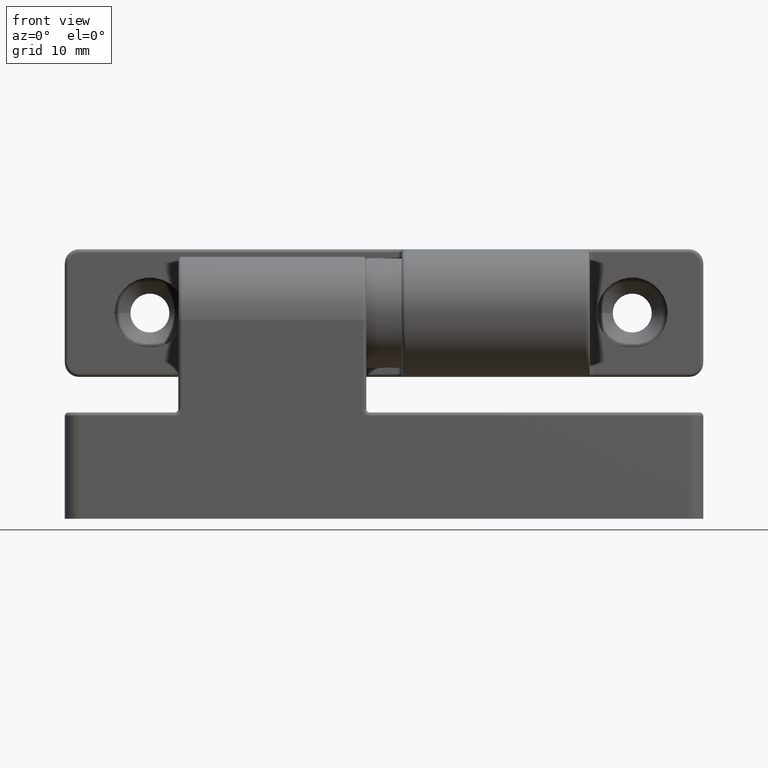
[diagram: clean part render]
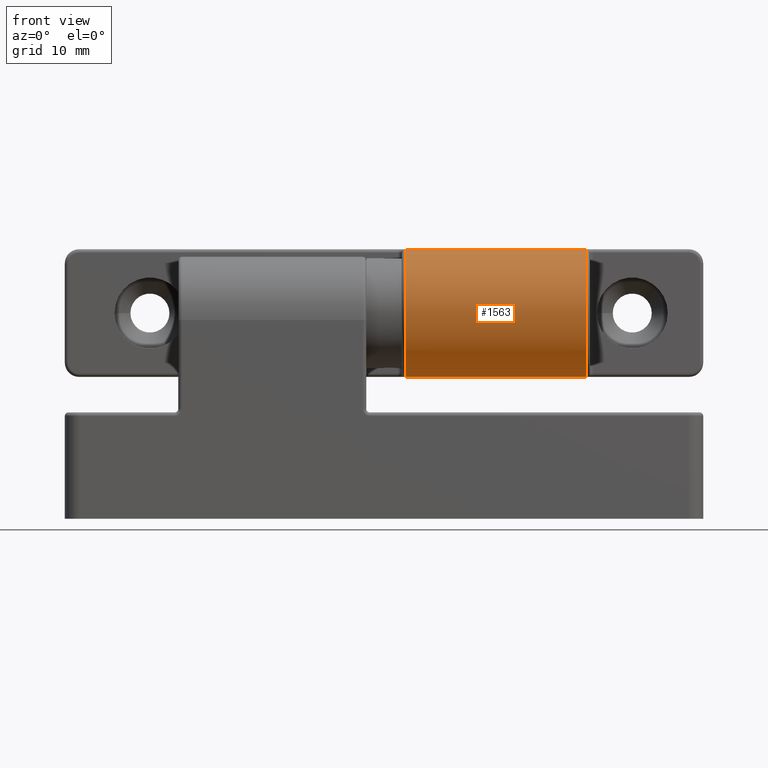
[diagram: same view with one face highlighted and labeled with its STEP entity id]
A machine part, front view. The second image highlights one B-rep face of the part: STEP entity #1563.
In plain terms, the highlighted cylindrical surface (partial cylindrical patch) has radius 9 mm, axis along (-1, 0, -0).
Its self-contained STEP definition (entity closure, byte-faithful):
#173=LINE('',#2704,#249);
#190=LINE('',#2778,#266);
#249=VECTOR('',#2211,25.5);
#266=VECTOR('',#2298,25.5);
#311=CYLINDRICAL_SURFACE('',#1787,9.);
#408=FACE_OUTER_BOUND('',#540,.T.);
#540=EDGE_LOOP('',(#1389,#1390,#1391,#1392));
#666=CIRCLE('',#1743,9.);
#690=CIRCLE('',#1783,9.);
#797=VERTEX_POINT('',#2675);
#799=VERTEX_POINT('',#2681);
#804=VERTEX_POINT('',#2703);
#824=VERTEX_POINT('',#2763);
#978=EDGE_CURVE('',#799,#797,#666,.T.);
#989=EDGE_CURVE('',#797,#804,#173,.T.);
#1020=EDGE_CURVE('',#804,#824,#690,.T.);
#1027=EDGE_CURVE('',#799,#824,#190,.T.);
#1389=ORIENTED_EDGE('',*,*,#978,.F.);
#1390=ORIENTED_EDGE('',*,*,#1027,.T.);
#1391=ORIENTED_EDGE('',*,*,#1020,.F.);
#1392=ORIENTED_EDGE('',*,*,#989,.F.);
#1563=ADVANCED_FACE('',(#408),#311,.T.);
#1743=AXIS2_PLACEMENT_3D('',#2683,#2186,#2187);
#1783=AXIS2_PLACEMENT_3D('',#2767,#2284,#2285);
#1787=AXIS2_PLACEMENT_3D('',#2779,#2299,#2300);
#2186=DIRECTION('center_axis',(-1.,0.,0.));
#2187=DIRECTION('ref_axis',(0.,-8.93433932504306E-19,1.));
#2211=DIRECTION('',(1.,0.,0.));
#2284=DIRECTION('center_axis',(1.,0.,0.));
#2285=DIRECTION('ref_axis',(0.,-8.93433932504306E-19,1.));
#2298=DIRECTION('',(1.,0.,0.));
#2299=DIRECTION('center_axis',(1.,0.,0.));
#2300=DIRECTION('ref_axis',(0.,1.2335811384724E-16,-1.));
#2675=CARTESIAN_POINT('',(-28.5,9.,23.));
#2681=CARTESIAN_POINT('',(-28.5,-9.,23.));
#2683=CARTESIAN_POINT('Origin',(-28.5,0.,23.));
#2703=CARTESIAN_POINT('',(-3.,9.,23.));
#2704=CARTESIAN_POINT('',(-29.,9.,23.));
#2763=CARTESIAN_POINT('',(-2.99999999999999,-9.,23.));
#2767=CARTESIAN_POINT('Origin',(-2.99999999999999,0.,23.));
#2778=CARTESIAN_POINT('',(-29.,-9.,23.));
#2779=CARTESIAN_POINT('Origin',(-29.,0.,23.));